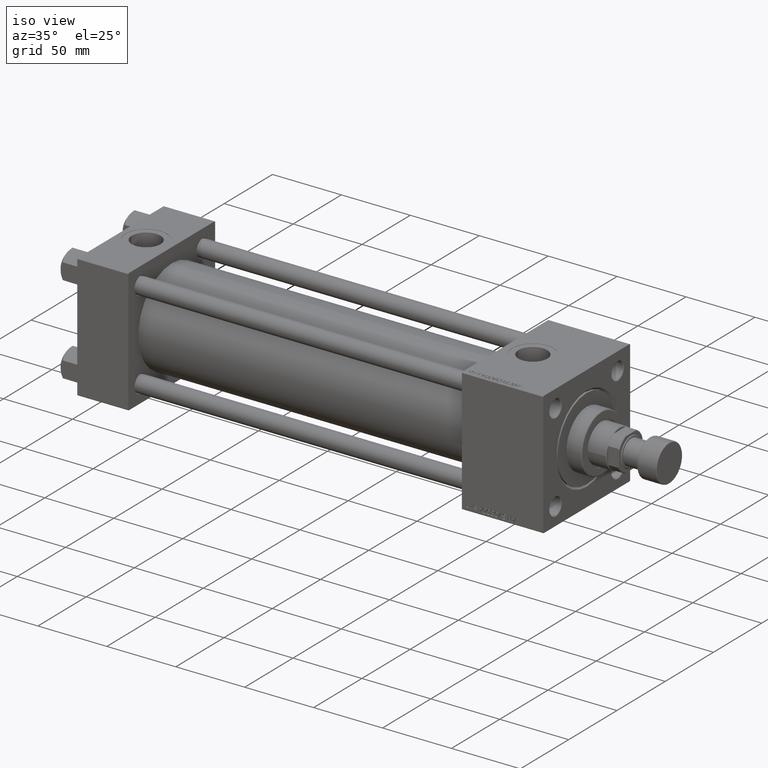
[diagram: clean part render]
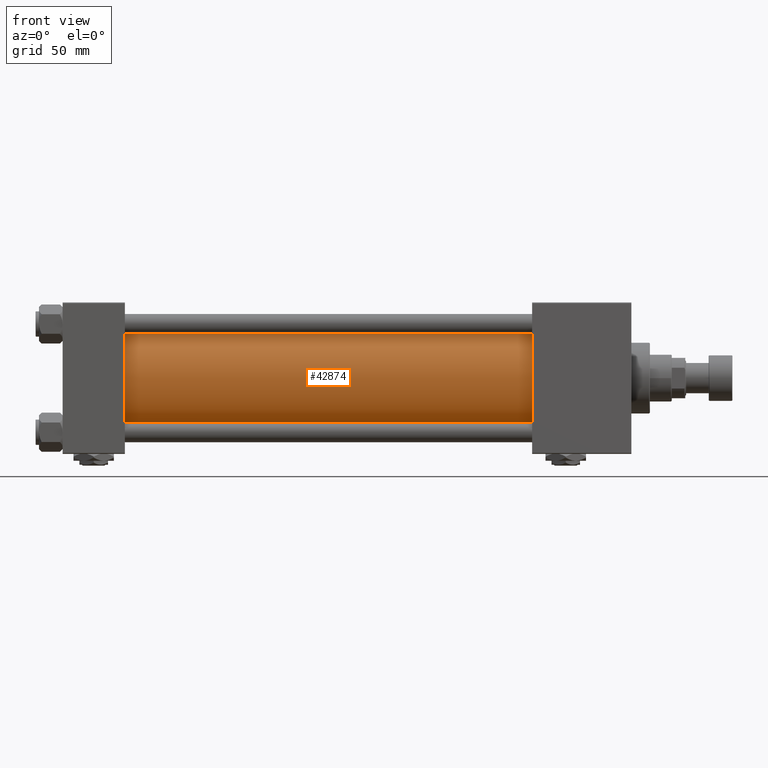
[diagram: tour spotlight — one face highlighted and labeled with its STEP entity id]
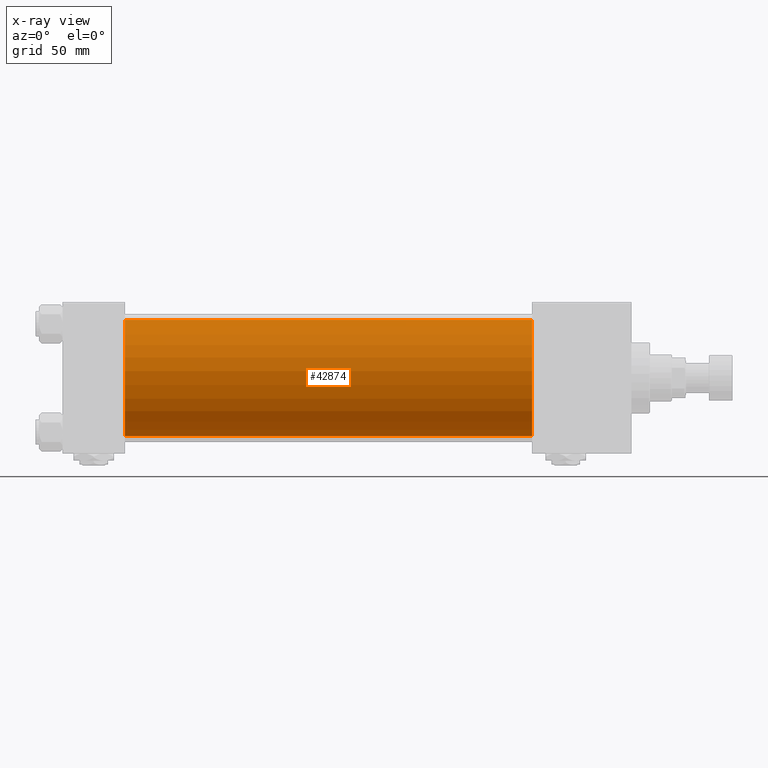
[diagram: x-ray of the same camera — body ghosted, this tour face saturated]
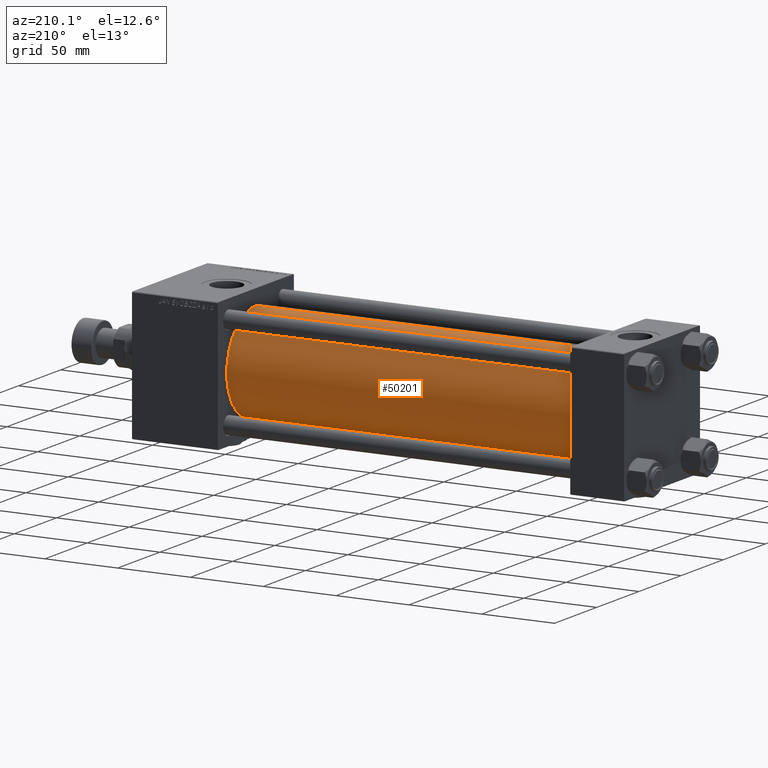
[diagram: tour spotlight — one face highlighted and labeled with its STEP entity id]
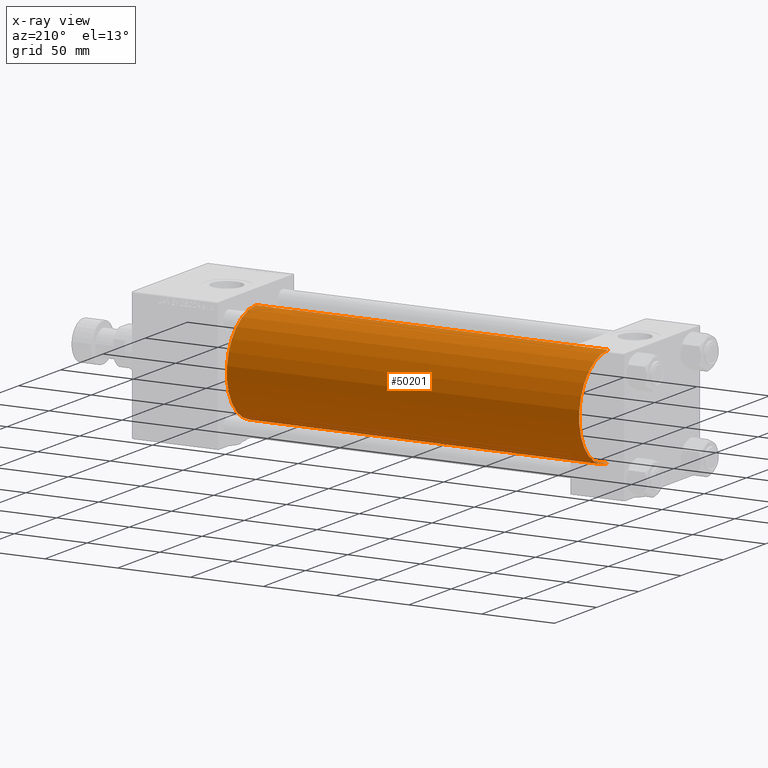
[diagram: x-ray of the same camera — body ghosted, this tour face saturated]
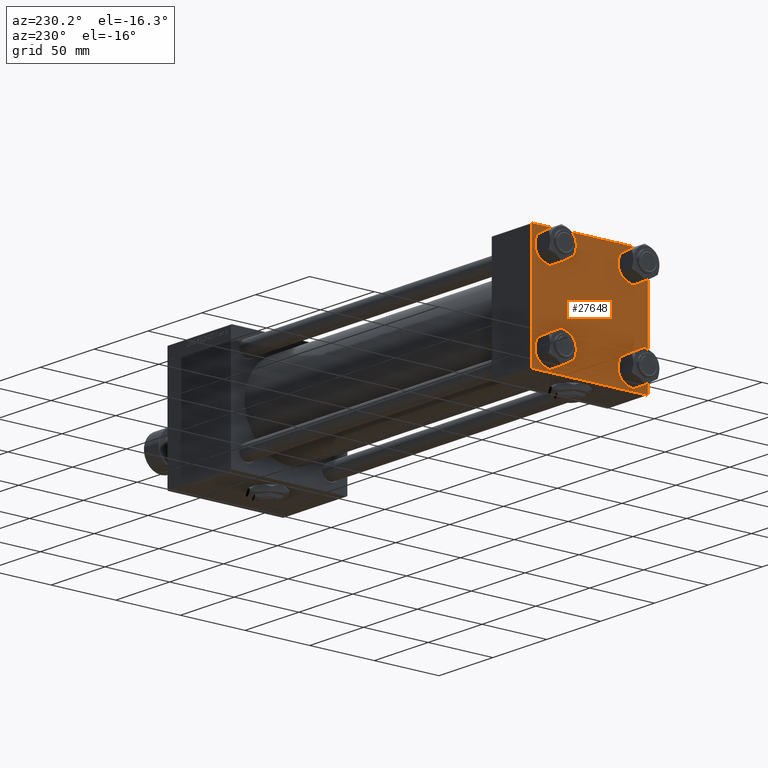
[diagram: tour spotlight — one face highlighted and labeled with its STEP entity id]
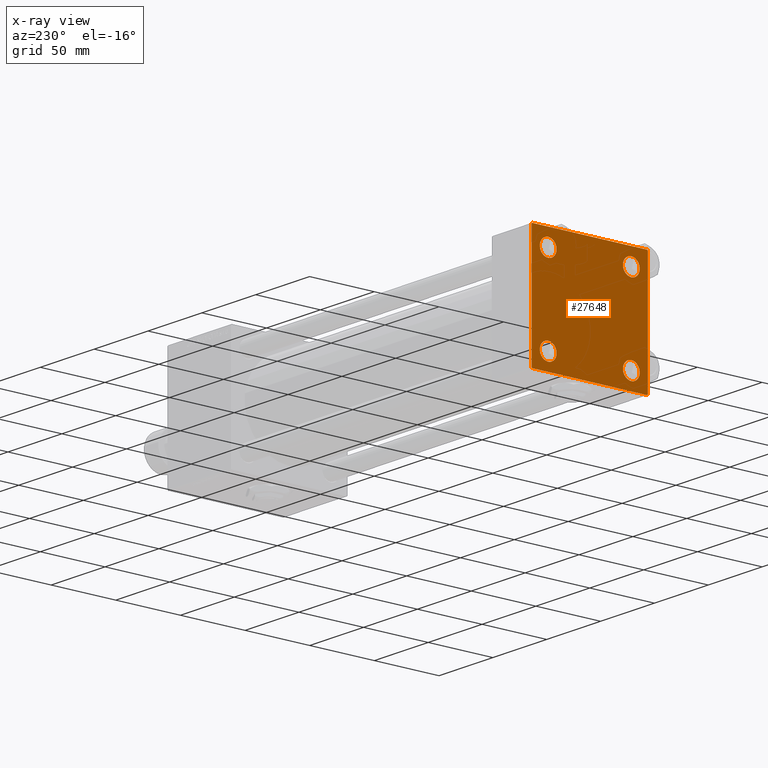
[diagram: x-ray of the same camera — body ghosted, this tour face saturated]
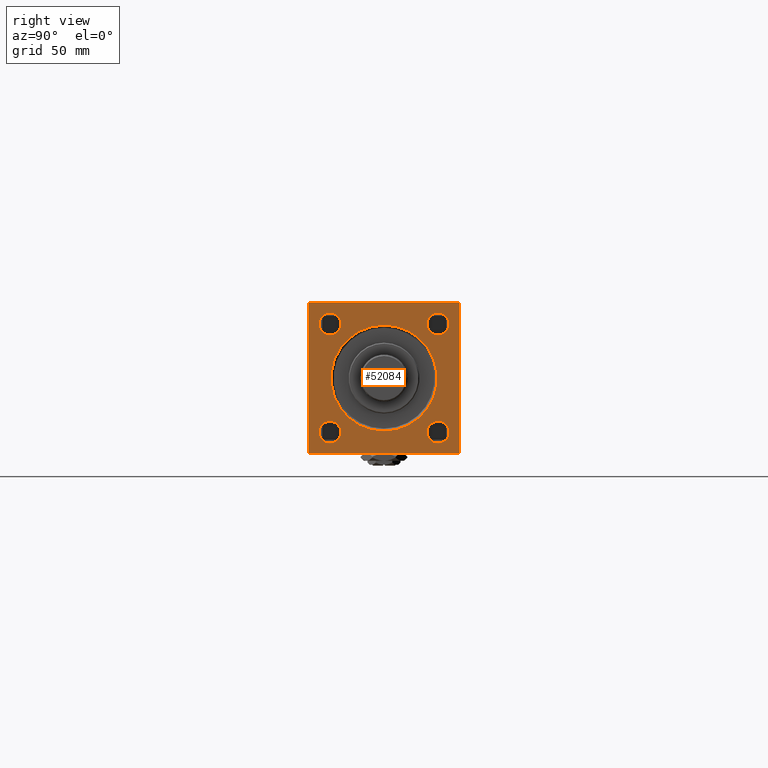
[diagram: tour spotlight — one face highlighted and labeled with its STEP entity id]
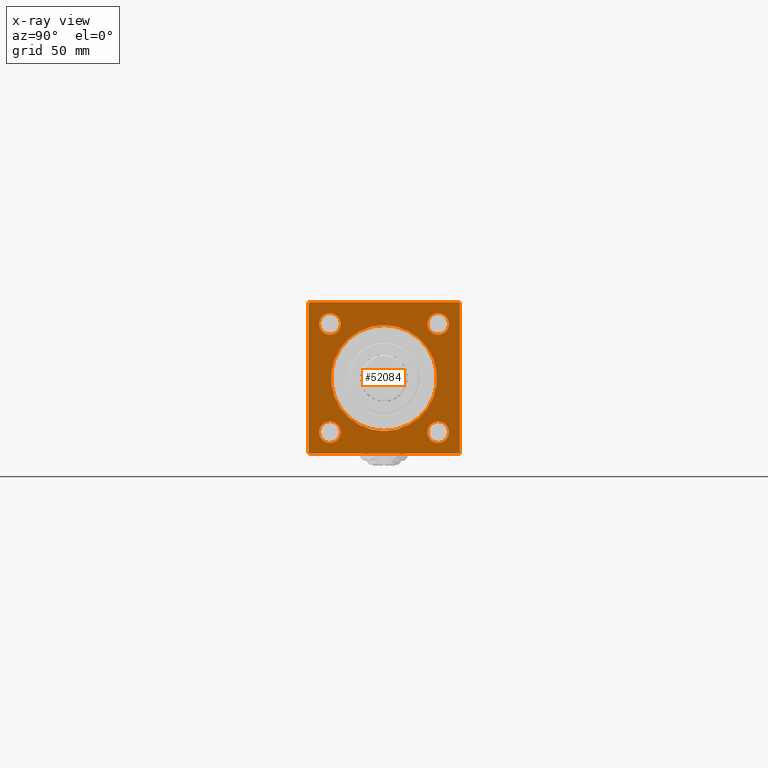
[diagram: x-ray of the same camera — body ghosted, this tour face saturated]
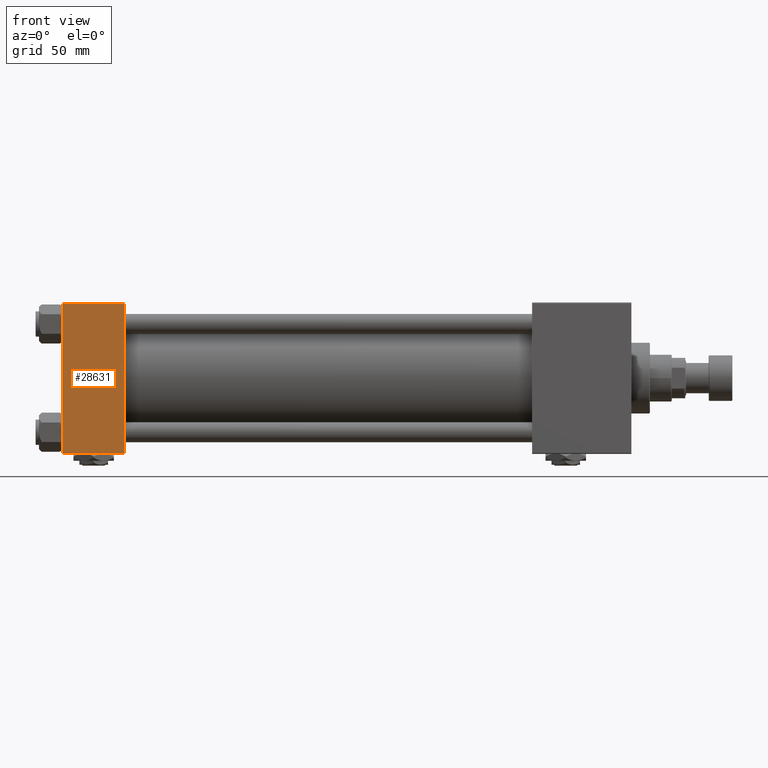
[diagram: tour spotlight — one face highlighted and labeled with its STEP entity id]
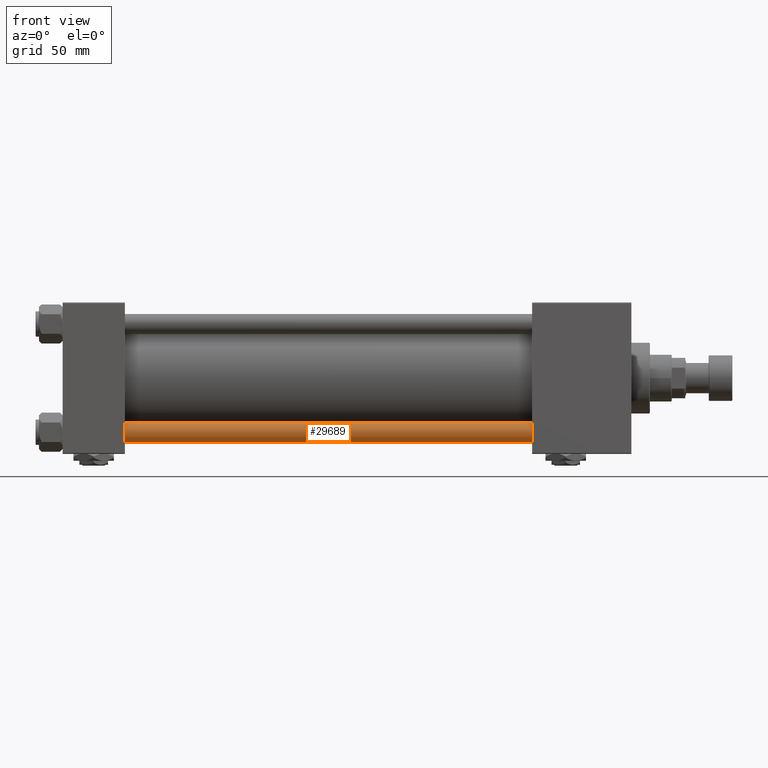
[diagram: tour spotlight — one face highlighted and labeled with its STEP entity id]
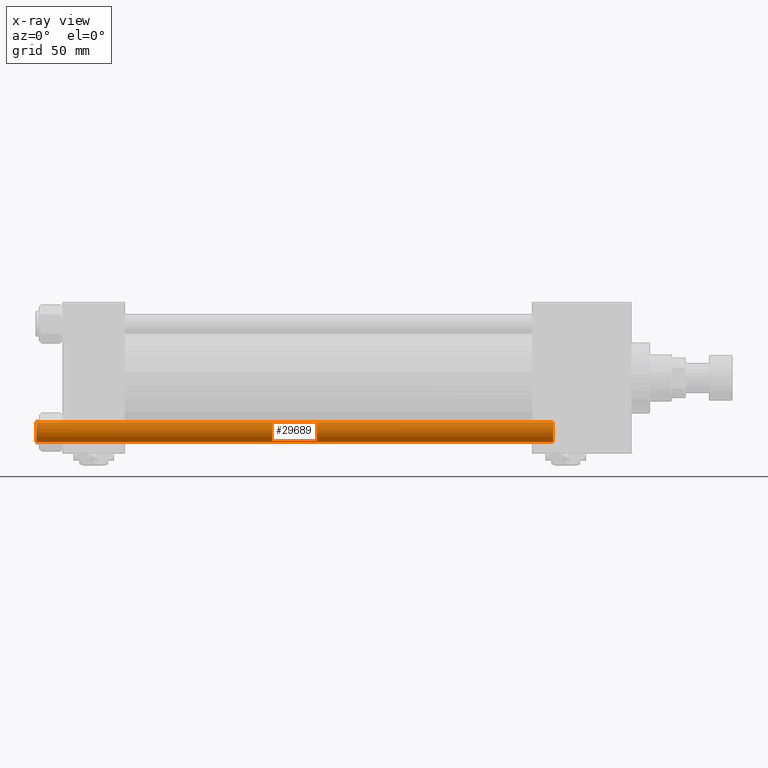
[diagram: x-ray of the same camera — body ghosted, this tour face saturated]
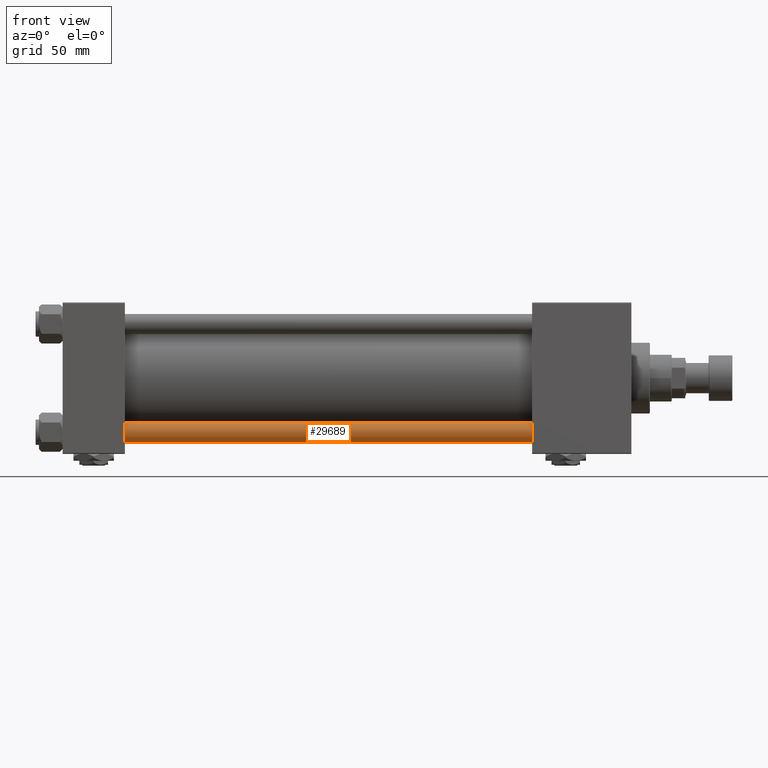
[diagram: tour spotlight — one face highlighted and labeled with its STEP entity id]
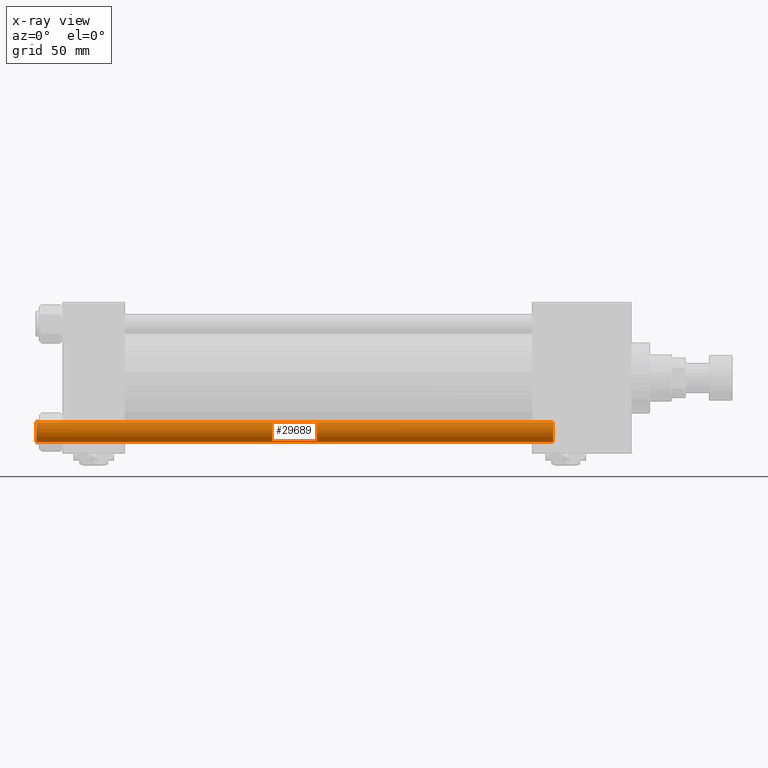
[diagram: x-ray of the same camera — body ghosted, this tour face saturated]
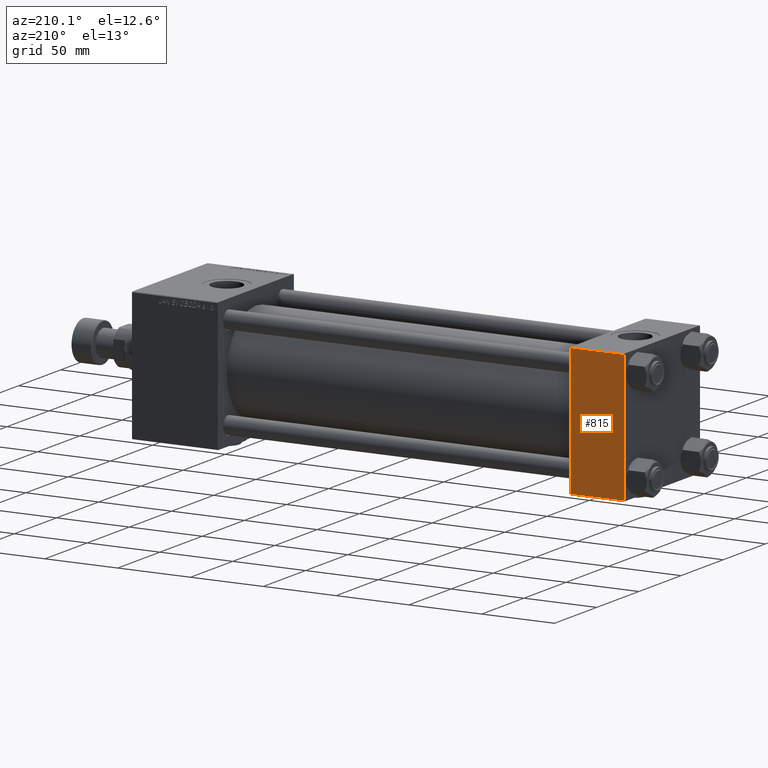
[diagram: tour spotlight — one face highlighted and labeled with its STEP entity id]
A machine part: a face-by-face anatomy tour. The part has 1264 B-rep faces; the first image is the clean iso view, then the 8 largest visible faces are spotlighted one at a time (largest first), each with its STEP entity span.

Face 1 — front view, entity #42874. An x-ray twin of the same camera follows (body ghosted, this face saturated) — the face is partly hidden behind the body. In plain terms, the highlighted cylindrical surface (partial cylindrical patch) has radius 34.5 mm, axis along (-1, -0, -0).
Definition (entity closure, byte-faithful):
#58 = VERTEX_POINT ( 'NONE', #32646 ) ;
#1352 = CARTESIAN_POINT ( 'NONE',  ( 278.9999999999999432, -2.602085213965210642E-15, 0.000000000000000000 ) ) ;
#3714 = VECTOR ( 'NONE', #35685, 1000.000000000000000 ) ;
#4329 = DIRECTION ( 'NONE',  ( 1.000000000000000000, 0.000000000000000000, 0.000000000000000000 ) ) ;
#6649 = CARTESIAN_POINT ( 'NONE',  ( 278.9999999999999432, 1.622946243093158675E-15, -34.50000000000000000 ) ) ;
#7718 = AXIS2_PLACEMENT_3D ( 'NONE', #10296, #30070, #9776 ) ;
#9776 = DIRECTION ( 'NONE',  ( 0.000000000000000000, 0.000000000000000000, 1.000000000000000000 ) ) ;
#10296 = CARTESIAN_POINT ( 'NONE',  ( 37.00000000000000711, -2.602085213965210642E-15, 0.000000000000000000 ) ) ;
#11086 = ORIENTED_EDGE ( 'NONE', *, *, #46362, .T. ) ;
#11197 = CARTESIAN_POINT ( 'NONE',  ( 278.9999999999999432, -2.602085213965210642E-15, 34.50000000000000000 ) ) ;
#14399 = CYLINDRICAL_SURFACE ( 'NONE', #28454, 34.50000000000000000 ) ;
#16445 = VECTOR ( 'NONE', #28718, 1000.000000000000000 ) ;
#17642 = CARTESIAN_POINT ( 'NONE',  ( 37.00000000000000711, 1.622946243093158675E-15, -34.50000000000000000 ) ) ;
#20474 = LINE ( 'NONE', #24481, #3714 ) ;
#21800 = EDGE_LOOP ( 'NONE', ( #38654, #25745, #11086, #48465 ) ) ;
#24481 = CARTESIAN_POINT ( 'NONE',  ( 278.9999999999999432, -2.602085213965210642E-15, 34.50000000000000000 ) ) ;
#25745 = ORIENTED_EDGE ( 'NONE', *, *, #33832, .F. ) ;
#26699 = CARTESIAN_POINT ( 'NONE',  ( 278.9999999999999432, -2.602085213965210642E-15, 0.000000000000000000 ) ) ;
#26958 = DIRECTION ( 'NONE',  ( 0.000000000000000000, 0.000000000000000000, 1.000000000000000000 ) ) ;
#28454 = AXIS2_PLACEMENT_3D ( 'NONE', #26699, #39497, #26958 ) ;
#28718 = DIRECTION ( 'NONE',  ( -1.000000000000000000, -0.000000000000000000, -0.000000000000000000 ) ) ;
#29922 = DIRECTION ( 'NONE',  ( 0.000000000000000000, 0.000000000000000000, -1.000000000000000000 ) ) ;
#30070 = DIRECTION ( 'NONE',  ( 1.000000000000000000, -0.000000000000000000, 0.000000000000000000 ) ) ;
#30972 = FACE_OUTER_BOUND ( 'NONE', #21800, .T. ) ;
#32646 = CARTESIAN_POINT ( 'NONE',  ( 37.00000000000000711, -2.602085213965210642E-15, 34.50000000000000000 ) ) ;
#32726 = LINE ( 'NONE', #48970, #16445 ) ;
#33832 = EDGE_CURVE ( 'NONE', #51826, #45151, #44311, .T. ) ;
#35296 = EDGE_CURVE ( 'NONE', #58, #52661, #48607, .T. ) ;
#35685 = DIRECTION ( 'NONE',  ( -1.000000000000000000, -0.000000000000000000, -0.000000000000000000 ) ) ;
#38654 = ORIENTED_EDGE ( 'NONE', *, *, #39929, .F. ) ;
#39497 = DIRECTION ( 'NONE',  ( -1.000000000000000000, -0.000000000000000000, -0.000000000000000000 ) ) ;
#39929 = EDGE_CURVE ( 'NONE', #45151, #52661, #32726, .T. ) ;
#42594 = AXIS2_PLACEMENT_3D ( 'NONE', #1352, #4329, #29922 ) ;
#42874 = ADVANCED_FACE ( 'NONE', ( #30972 ), #14399, .T. ) ;
#44311 = CIRCLE ( 'NONE', #42594, 34.50000000000000000 ) ;
#45151 = VERTEX_POINT ( 'NONE', #6649 ) ;
#46362 = EDGE_CURVE ( 'NONE', #51826, #58, #20474, .T. ) ;
#48465 = ORIENTED_EDGE ( 'NONE', *, *, #35296, .T. ) ;
#48607 = CIRCLE ( 'NONE', #7718, 34.50000000000000000 ) ;
#48970 = CARTESIAN_POINT ( 'NONE',  ( 278.9999999999999432, 1.622946243093158675E-15, -34.50000000000000000 ) ) ;
#51826 = VERTEX_POINT ( 'NONE', #11197 ) ;
#52661 = VERTEX_POINT ( 'NONE', #17642 ) ;

Face 2 — auxiliary view, entity #50201. An x-ray twin of the same camera follows (body ghosted, this face saturated) — the face is partly hidden behind the body. In plain terms, the highlighted cylindrical surface (partial cylindrical patch) has radius 34.5 mm, axis along (-1, -0, -0).
Definition (entity closure, byte-faithful):
#58 = VERTEX_POINT ( 'NONE', #32646 ) ;
#3649 = FACE_OUTER_BOUND ( 'NONE', #24634, .T. ) ;
#3714 = VECTOR ( 'NONE', #35685, 1000.000000000000000 ) ;
#5032 = CARTESIAN_POINT ( 'NONE',  ( 37.00000000000000711, -2.602085213965210642E-15, 0.000000000000000000 ) ) ;
#6649 = CARTESIAN_POINT ( 'NONE',  ( 278.9999999999999432, 1.622946243093158675E-15, -34.50000000000000000 ) ) ;
#7744 = ORIENTED_EDGE ( 'NONE', *, *, #16976, .T. ) ;
#10232 = ORIENTED_EDGE ( 'NONE', *, *, #39929, .T. ) ;
#11197 = CARTESIAN_POINT ( 'NONE',  ( 278.9999999999999432, -2.602085213965210642E-15, 34.50000000000000000 ) ) ;
#11274 = DIRECTION ( 'NONE',  ( 0.000000000000000000, 0.000000000000000000, -1.000000000000000000 ) ) ;
#11339 = AXIS2_PLACEMENT_3D ( 'NONE', #5032, #29082, #49319 ) ;
#13840 = CIRCLE ( 'NONE', #43694, 34.50000000000000000 ) ;
#16396 = EDGE_CURVE ( 'NONE', #45151, #51826, #13840, .T. ) ;
#16445 = VECTOR ( 'NONE', #28718, 1000.000000000000000 ) ;
#16976 = EDGE_CURVE ( 'NONE', #52661, #58, #48811, .T. ) ;
#17642 = CARTESIAN_POINT ( 'NONE',  ( 37.00000000000000711, 1.622946243093158675E-15, -34.50000000000000000 ) ) ;
#19229 = AXIS2_PLACEMENT_3D ( 'NONE', #52448, #24727, #20457 ) ;
#20457 = DIRECTION ( 'NONE',  ( 0.000000000000000000, 0.000000000000000000, 1.000000000000000000 ) ) ;
#20474 = LINE ( 'NONE', #24481, #3714 ) ;
#20982 = CYLINDRICAL_SURFACE ( 'NONE', #19229, 34.50000000000000000 ) ;
#24481 = CARTESIAN_POINT ( 'NONE',  ( 278.9999999999999432, -2.602085213965210642E-15, 34.50000000000000000 ) ) ;
#24634 = EDGE_LOOP ( 'NONE', ( #28173, #10232, #7744, #41732 ) ) ;
#24727 = DIRECTION ( 'NONE',  ( -1.000000000000000000, -0.000000000000000000, -0.000000000000000000 ) ) ;
#28173 = ORIENTED_EDGE ( 'NONE', *, *, #16396, .F. ) ;
#28718 = DIRECTION ( 'NONE',  ( -1.000000000000000000, -0.000000000000000000, -0.000000000000000000 ) ) ;
#29082 = DIRECTION ( 'NONE',  ( 1.000000000000000000, -0.000000000000000000, 0.000000000000000000 ) ) ;
#32097 = CARTESIAN_POINT ( 'NONE',  ( 278.9999999999999432, -2.602085213965210642E-15, 0.000000000000000000 ) ) ;
#32646 = CARTESIAN_POINT ( 'NONE',  ( 37.00000000000000711, -2.602085213965210642E-15, 34.50000000000000000 ) ) ;
#32726 = LINE ( 'NONE', #48970, #16445 ) ;
#35312 = DIRECTION ( 'NONE',  ( 1.000000000000000000, 0.000000000000000000, 0.000000000000000000 ) ) ;
#35685 = DIRECTION ( 'NONE',  ( -1.000000000000000000, -0.000000000000000000, -0.000000000000000000 ) ) ;
#39929 = EDGE_CURVE ( 'NONE', #45151, #52661, #32726, .T. ) ;
#41732 = ORIENTED_EDGE ( 'NONE', *, *, #46362, .F. ) ;
#43694 = AXIS2_PLACEMENT_3D ( 'NONE', #32097, #35312, #11274 ) ;
#45151 = VERTEX_POINT ( 'NONE', #6649 ) ;
#46362 = EDGE_CURVE ( 'NONE', #51826, #58, #20474, .T. ) ;
#48811 = CIRCLE ( 'NONE', #11339, 34.50000000000000000 ) ;
#48970 = CARTESIAN_POINT ( 'NONE',  ( 278.9999999999999432, 1.622946243093158675E-15, -34.50000000000000000 ) ) ;
#49319 = DIRECTION ( 'NONE',  ( 0.000000000000000000, 0.000000000000000000, 1.000000000000000000 ) ) ;
#50201 = ADVANCED_FACE ( 'NONE', ( #3649 ), #20982, .T. ) ;
#51826 = VERTEX_POINT ( 'NONE', #11197 ) ;
#52448 = CARTESIAN_POINT ( 'NONE',  ( 278.9999999999999432, -2.602085213965210642E-15, 0.000000000000000000 ) ) ;
#52661 = VERTEX_POINT ( 'NONE', #17642 ) ;

Face 3 — auxiliary view, entity #27648. An x-ray twin of the same camera follows (body ghosted, this face saturated) — the face is partly hidden behind the body. In plain terms, the highlighted planar face has unit normal (-1, 0, 0).
Definition (entity closure, byte-faithful):
#413 = CARTESIAN_POINT ( 'NONE',  ( 0.000000000000000000, -32.14999999999997726, 32.15000000000001279 ) ) ;
#1798 = DIRECTION ( 'NONE',  ( 0.000000000000000000, 0.000000000000000000, 1.000000000000000000 ) ) ;
#1878 = DIRECTION ( 'NONE',  ( 1.000000000000000000, -0.000000000000000000, 0.000000000000000000 ) ) ;
#2035 = DIRECTION ( 'NONE',  ( 0.000000000000000000, -1.000000000000000000, -1.541976423090495387E-16 ) ) ;
#2388 = CARTESIAN_POINT ( 'NONE',  ( 0.000000000000000000, -32.14999999999997726, 38.65000000000003411 ) ) ;
#2830 = EDGE_CURVE ( 'NONE', #51445, #47300, #32965, .T. ) ;
#3732 = CARTESIAN_POINT ( 'NONE',  ( 0.000000000000000000, 44.99999999999998579, -44.99999999999998579 ) ) ;
#4066 = ORIENTED_EDGE ( 'NONE', *, *, #18206, .T. ) ;
#4173 = ORIENTED_EDGE ( 'NONE', *, *, #15543, .T. ) ;
#4613 = CARTESIAN_POINT ( 'NONE',  ( 0.000000000000000000, 44.99999999999998579, -44.49999999999995737 ) ) ;
#4817 = CARTESIAN_POINT ( 'NONE',  ( 0.000000000000000000, 32.14999999999999147, -32.15000000000000568 ) ) ;
#5038 = EDGE_CURVE ( 'NONE', #40712, #45603, #28124, .T. ) ;
#5257 = EDGE_LOOP ( 'NONE', ( #4173, #43903, #43308, #49409, #27663, #51834, #24250, #44446 ) ) ;
#5527 = AXIS2_PLACEMENT_3D ( 'NONE', #4817, #49096, #37631 ) ;
#6275 = CIRCLE ( 'NONE', #24202, 6.500000000000019540 ) ;
#6492 = ORIENTED_EDGE ( 'NONE', *, *, #42709, .T. ) ;
#7046 = ORIENTED_EDGE ( 'NONE', *, *, #49429, .T. ) ;
#7927 = CARTESIAN_POINT ( 'NONE',  ( 0.000000000000000000, -32.14999999999997726, 25.64999999999999147 ) ) ;
#8659 = DIRECTION ( 'NONE',  ( 0.000000000000000000, 0.7071067811865474617, -0.7071067811865474617 ) ) ;
#9945 = DIRECTION ( 'NONE',  ( 0.000000000000000000, 0.000000000000000000, -1.000000000000000000 ) ) ;
#10818 = CARTESIAN_POINT ( 'NONE',  ( 0.000000000000000000, -32.14999999999997726, 32.15000000000001279 ) ) ;
#10828 = VECTOR ( 'NONE', #51609, 1000.000000000000114 ) ;
#10895 = CARTESIAN_POINT ( 'NONE',  ( 0.000000000000000000, 44.49999999999998579, 45.00000000000001421 ) ) ;
#11577 = DIRECTION ( 'NONE',  ( -0.000000000000000000, 0.000000000000000000, 1.000000000000000000 ) ) ;
#11915 = VECTOR ( 'NONE', #52790, 1000.000000000000114 ) ;
#12068 = VERTEX_POINT ( 'NONE', #10895 ) ;
#12651 = LINE ( 'NONE', #37219, #46088 ) ;
#13677 = CARTESIAN_POINT ( 'NONE',  ( 0.000000000000000000, 32.14999999999999147, 38.64999999999999147 ) ) ;
#13686 = CARTESIAN_POINT ( 'NONE',  ( 0.000000000000000000, 44.99999999999998579, 45.00000000000001421 ) ) ;
#13877 = DIRECTION ( 'NONE',  ( 0.000000000000000000, 0.000000000000000000, 1.000000000000000000 ) ) ;
#14270 = DIRECTION ( 'NONE',  ( -0.000000000000000000, 0.7071067811865425767, 0.7071067811865524577 ) ) ;
#14622 = EDGE_LOOP ( 'NONE', ( #39060, #24943 ) ) ;
#14697 = VERTEX_POINT ( 'NONE', #13677 ) ;
#14789 = CARTESIAN_POINT ( 'NONE',  ( 0.000000000000000000, -32.14999999999997726, -32.15000000000001279 ) ) ;
#14810 = FACE_BOUND ( 'NONE', #16227, .T. ) ;
#15543 = EDGE_CURVE ( 'NONE', #19073, #35900, #50229, .T. ) ;
#15740 = LINE ( 'NONE', #32028, #11915 ) ;
#15788 = DIRECTION ( 'NONE',  ( 1.000000000000000000, -0.000000000000000000, 0.000000000000000000 ) ) ;
#16123 = DIRECTION ( 'NONE',  ( 0.000000000000000000, 0.000000000000000000, 1.000000000000000000 ) ) ;
#16227 = EDGE_LOOP ( 'NONE', ( #4066, #16648 ) ) ;
#16521 = CARTESIAN_POINT ( 'NONE',  ( 0.000000000000000000, 32.14999999999999147, -25.65000000000002700 ) ) ;
#16648 = ORIENTED_EDGE ( 'NONE', *, *, #50273, .T. ) ;
#16708 = DIRECTION ( 'NONE',  ( 0.000000000000000000, 0.000000000000000000, 1.000000000000000000 ) ) ;
#17255 = VECTOR ( 'NONE', #9945, 1000.000000000000000 ) ;
#17937 = CARTESIAN_POINT ( 'NONE',  ( 0.000000000000000000, -45.00000000000000000, -44.49999999999995737 ) ) ;
#18206 = EDGE_CURVE ( 'NONE', #45108, #46316, #6275, .T. ) ;
#18305 = LINE ( 'NONE', #45760, #40002 ) ;
#19073 = VERTEX_POINT ( 'NONE', #51118 ) ;
#19095 = FACE_BOUND ( 'NONE', #14622, .T. ) ;
#19130 = DIRECTION ( 'NONE',  ( 1.000000000000000000, -0.000000000000000000, 0.000000000000000000 ) ) ;
#19399 = EDGE_CURVE ( 'NONE', #14697, #45553, #24242, .T. ) ;
#21185 = CARTESIAN_POINT ( 'NONE',  ( 0.000000000000000000, -45.00000000000000711, 44.49999999999997158 ) ) ;
#21738 = CIRCLE ( 'NONE', #5527, 6.499999999999977796 ) ;
#21836 = CARTESIAN_POINT ( 'NONE',  ( 0.000000000000000000, -32.14999999999997726, -32.15000000000001279 ) ) ;
#22829 = CARTESIAN_POINT ( 'NONE',  ( 0.000000000000000000, 0.000000000000000000, 0.000000000000000000 ) ) ;
#24152 = DIRECTION ( 'NONE',  ( 1.000000000000000000, -0.000000000000000000, 0.000000000000000000 ) ) ;
#24153 = EDGE_CURVE ( 'NONE', #35900, #37018, #47594, .T. ) ;
#24189 = AXIS2_PLACEMENT_3D ( 'NONE', #33653, #1878, #13877 ) ;
#24202 = AXIS2_PLACEMENT_3D ( 'NONE', #10818, #19130, #39661 ) ;
#24242 = CIRCLE ( 'NONE', #52304, 6.499999999999977796 ) ;
#24250 = ORIENTED_EDGE ( 'NONE', *, *, #33071, .F. ) ;
#24478 = CARTESIAN_POINT ( 'NONE',  ( 0.000000000000000000, -44.49999999999995737, -45.00000000000000000 ) ) ;
#24616 = VERTEX_POINT ( 'NONE', #24478 ) ;
#24687 = ORIENTED_EDGE ( 'NONE', *, *, #19399, .T. ) ;
#24943 = ORIENTED_EDGE ( 'NONE', *, *, #49799, .T. ) ;
#25551 = VECTOR ( 'NONE', #2035, 1000.000000000000000 ) ;
#27341 = DIRECTION ( 'NONE',  ( 1.000000000000000000, -0.000000000000000000, 0.000000000000000000 ) ) ;
#27498 = LINE ( 'NONE', #3732, #35794 ) ;
#27627 = PLANE ( 'NONE',  #47578 ) ;
#27648 = ADVANCED_FACE ( 'NONE', ( #14810, #19095, #35615, #47598, #31104 ), #27627, .T. ) ;
#27663 = ORIENTED_EDGE ( 'NONE', *, *, #2830, .F. ) ;
#28124 = CIRCLE ( 'NONE', #52768, 6.499999999999977796 ) ;
#30063 = LINE ( 'NONE', #46319, #25551 ) ;
#30125 = EDGE_CURVE ( 'NONE', #44100, #40270, #51919, .T. ) ;
#31104 = FACE_OUTER_BOUND ( 'NONE', #5257, .T. ) ;
#31520 = EDGE_CURVE ( 'NONE', #37018, #24616, #27498, .T. ) ;
#32028 = CARTESIAN_POINT ( 'NONE',  ( 0.000000000000000000, -44.74999999999998579, -44.74999999999998579 ) ) ;
#32176 = DIRECTION ( 'NONE',  ( 0.000000000000000000, 7.709882115452476934E-17, -1.000000000000000000 ) ) ;
#32860 = CARTESIAN_POINT ( 'NONE',  ( 0.000000000000000000, 32.14999999999999147, -32.15000000000000568 ) ) ;
#32917 = CARTESIAN_POINT ( 'NONE',  ( 0.000000000000000000, -32.14999999999997726, -38.64999999999999147 ) ) ;
#32965 = LINE ( 'NONE', #40179, #45054 ) ;
#33071 = EDGE_CURVE ( 'NONE', #12068, #41664, #30063, .T. ) ;
#33133 = CARTESIAN_POINT ( 'NONE',  ( 0.000000000000000000, -32.14999999999997726, -25.65000000000003411 ) ) ;
#33653 = CARTESIAN_POINT ( 'NONE',  ( 0.000000000000000000, 32.14999999999999147, 32.15000000000000568 ) ) ;
#35615 = FACE_BOUND ( 'NONE', #52014, .T. ) ;
#35748 = DIRECTION ( 'NONE',  ( 0.000000000000000000, -1.000000000000000000, -1.541976423090495633E-16 ) ) ;
#35794 = VECTOR ( 'NONE', #35748, 1000.000000000000000 ) ;
#35900 = VERTEX_POINT ( 'NONE', #4613 ) ;
#36545 = EDGE_CURVE ( 'NONE', #12068, #19073, #12651, .T. ) ;
#37018 = VERTEX_POINT ( 'NONE', #42198 ) ;
#37219 = CARTESIAN_POINT ( 'NONE',  ( 0.000000000000000000, 44.74999999999999289, 44.74999999999999289 ) ) ;
#37631 = DIRECTION ( 'NONE',  ( 0.000000000000000000, 0.000000000000000000, 1.000000000000000000 ) ) ;
#39060 = ORIENTED_EDGE ( 'NONE', *, *, #30125, .T. ) ;
#39661 = DIRECTION ( 'NONE',  ( 0.000000000000000000, 0.000000000000000000, 1.000000000000000000 ) ) ;
#39875 = CARTESIAN_POINT ( 'NONE',  ( 0.000000000000000000, 44.74999999999998579, -44.74999999999998579 ) ) ;
#40002 = VECTOR ( 'NONE', #14270, 1000.000000000000114 ) ;
#40179 = CARTESIAN_POINT ( 'NONE',  ( 0.000000000000000000, -45.00000000000000711, 45.00000000000000000 ) ) ;
#40270 = VERTEX_POINT ( 'NONE', #32917 ) ;
#40507 = AXIS2_PLACEMENT_3D ( 'NONE', #21836, #49818, #1798 ) ;
#40712 = VERTEX_POINT ( 'NONE', #16521 ) ;
#40935 = CARTESIAN_POINT ( 'NONE',  ( 0.000000000000000000, 32.14999999999999147, 32.15000000000000568 ) ) ;
#41234 = CIRCLE ( 'NONE', #24189, 6.499999999999977796 ) ;
#41664 = VERTEX_POINT ( 'NONE', #51415 ) ;
#42198 = CARTESIAN_POINT ( 'NONE',  ( 0.000000000000000000, 44.49999999999998579, -44.99999999999998579 ) ) ;
#42709 = EDGE_CURVE ( 'NONE', #45553, #14697, #41234, .T. ) ;
#42844 = EDGE_LOOP ( 'NONE', ( #24687, #6492 ) ) ;
#43308 = ORIENTED_EDGE ( 'NONE', *, *, #31520, .T. ) ;
#43629 = DIRECTION ( 'NONE',  ( -1.000000000000000000, 0.000000000000000000, -0.000000000000000000 ) ) ;
#43903 = ORIENTED_EDGE ( 'NONE', *, *, #24153, .T. ) ;
#43949 = CARTESIAN_POINT ( 'NONE',  ( 0.000000000000000000, 32.14999999999999147, -38.64999999999998437 ) ) ;
#44100 = VERTEX_POINT ( 'NONE', #33133 ) ;
#44366 = ORIENTED_EDGE ( 'NONE', *, *, #5038, .T. ) ;
#44446 = ORIENTED_EDGE ( 'NONE', *, *, #36545, .T. ) ;
#45054 = VECTOR ( 'NONE', #32176, 1000.000000000000000 ) ;
#45108 = VERTEX_POINT ( 'NONE', #2388 ) ;
#45109 = DIRECTION ( 'NONE',  ( 0.000000000000000000, 0.000000000000000000, 1.000000000000000000 ) ) ;
#45553 = VERTEX_POINT ( 'NONE', #48194 ) ;
#45584 = CIRCLE ( 'NONE', #40507, 6.499999999999977796 ) ;
#45603 = VERTEX_POINT ( 'NONE', #43949 ) ;
#45760 = CARTESIAN_POINT ( 'NONE',  ( -0.000000000000000000, -44.75000000000029843, 44.74999999999967315 ) ) ;
#46088 = VECTOR ( 'NONE', #8659, 1000.000000000000114 ) ;
#46316 = VERTEX_POINT ( 'NONE', #7927 ) ;
#46319 = CARTESIAN_POINT ( 'NONE',  ( 0.000000000000000000, 44.99999999999998579, 45.00000000000001421 ) ) ;
#47062 = DIRECTION ( 'NONE',  ( 0.000000000000000000, 0.000000000000000000, 1.000000000000000000 ) ) ;
#47300 = VERTEX_POINT ( 'NONE', #17937 ) ;
#47578 = AXIS2_PLACEMENT_3D ( 'NONE', #22829, #43629, #11577 ) ;
#47594 = LINE ( 'NONE', #39875, #10828 ) ;
#47598 = FACE_BOUND ( 'NONE', #42844, .T. ) ;
#47689 = AXIS2_PLACEMENT_3D ( 'NONE', #14789, #27341, #47062 ) ;
#48194 = CARTESIAN_POINT ( 'NONE',  ( 0.000000000000000000, 32.14999999999999147, 25.65000000000002700 ) ) ;
#48438 = DIRECTION ( 'NONE',  ( 1.000000000000000000, -0.000000000000000000, 0.000000000000000000 ) ) ;
#49014 = CIRCLE ( 'NONE', #49844, 6.500000000000019540 ) ;
#49096 = DIRECTION ( 'NONE',  ( 1.000000000000000000, -0.000000000000000000, 0.000000000000000000 ) ) ;
#49409 = ORIENTED_EDGE ( 'NONE', *, *, #51902, .T. ) ;
#49429 = EDGE_CURVE ( 'NONE', #45603, #40712, #21738, .T. ) ;
#49799 = EDGE_CURVE ( 'NONE', #40270, #44100, #45584, .T. ) ;
#49818 = DIRECTION ( 'NONE',  ( 1.000000000000000000, -0.000000000000000000, 0.000000000000000000 ) ) ;
#49844 = AXIS2_PLACEMENT_3D ( 'NONE', #413, #48438, #16708 ) ;
#50229 = LINE ( 'NONE', #13686, #17255 ) ;
#50273 = EDGE_CURVE ( 'NONE', #46316, #45108, #49014, .T. ) ;
#51118 = CARTESIAN_POINT ( 'NONE',  ( 0.000000000000000000, 44.99999999999998579, 44.50000000000001421 ) ) ;
#51120 = EDGE_CURVE ( 'NONE', #51445, #41664, #18305, .T. ) ;
#51415 = CARTESIAN_POINT ( 'NONE',  ( 0.000000000000000000, -44.49999999999995737, 45.00000000000000000 ) ) ;
#51445 = VERTEX_POINT ( 'NONE', #21185 ) ;
#51609 = DIRECTION ( 'NONE',  ( -0.000000000000000000, -0.7071067811865474617, -0.7071067811865474617 ) ) ;
#51834 = ORIENTED_EDGE ( 'NONE', *, *, #51120, .T. ) ;
#51902 = EDGE_CURVE ( 'NONE', #24616, #47300, #15740, .T. ) ;
#51919 = CIRCLE ( 'NONE', #47689, 6.499999999999977796 ) ;
#52014 = EDGE_LOOP ( 'NONE', ( #44366, #7046 ) ) ;
#52304 = AXIS2_PLACEMENT_3D ( 'NONE', #40935, #24152, #16123 ) ;
#52768 = AXIS2_PLACEMENT_3D ( 'NONE', #32860, #15788, #45109 ) ;
#52790 = DIRECTION ( 'NONE',  ( 0.000000000000000000, -0.7071067811865474617, 0.7071067811865474617 ) ) ;

Face 4 — right view, entity #52084. An x-ray twin of the same camera follows (body ghosted, this face saturated) — the face is partly hidden behind the body. In plain terms, the highlighted planar face has unit normal (-1, 0, 0).
Definition (entity closure, byte-faithful):
#145 = DIRECTION ( 'NONE',  ( 0.000000000000000000, 0.000000000000000000, 1.000000000000000000 ) ) ;
#233 = EDGE_CURVE ( 'NONE', #9581, #47003, #45766, .T. ) ;
#266 = LINE ( 'NONE', #12010, #29716 ) ;
#824 = EDGE_CURVE ( 'NONE', #25717, #34179, #43326, .T. ) ;
#1081 = CIRCLE ( 'NONE', #12173, 31.49999999999997158 ) ;
#1608 = CIRCLE ( 'NONE', #11852, 6.499999999999950262 ) ;
#1691 = ORIENTED_EDGE ( 'NONE', *, *, #6436, .T. ) ;
#1816 = FACE_BOUND ( 'NONE', #35849, .T. ) ;
#1977 = EDGE_CURVE ( 'NONE', #43242, #48823, #33103, .T. ) ;
#2084 = FACE_BOUND ( 'NONE', #28936, .T. ) ;
#2372 = CARTESIAN_POINT ( 'NONE',  ( 337.9999999999999432, -32.15000000000001279, -38.64999999999996305 ) ) ;
#3042 = DIRECTION ( 'NONE',  ( 0.000000000000000000, 0.000000000000000000, -1.000000000000000000 ) ) ;
#3071 = EDGE_CURVE ( 'NONE', #16089, #19591, #266, .T. ) ;
#3198 = AXIS2_PLACEMENT_3D ( 'NONE', #10162, #6686, #35516 ) ;
#4020 = DIRECTION ( 'NONE',  ( -0.000000000000000000, 0.7071067811865474617, 0.7071067811865474617 ) ) ;
#4163 = DIRECTION ( 'NONE',  ( -1.000000000000000000, -0.000000000000000000, -0.000000000000000000 ) ) ;
#4220 = ORIENTED_EDGE ( 'NONE', *, *, #45102, .T. ) ;
#4630 = AXIS2_PLACEMENT_3D ( 'NONE', #12324, #16349, #8069 ) ;
#5075 = AXIS2_PLACEMENT_3D ( 'NONE', #45600, #16561, #41593 ) ;
#6081 = FACE_BOUND ( 'NONE', #26675, .T. ) ;
#6436 = EDGE_CURVE ( 'NONE', #47003, #9581, #45997, .T. ) ;
#6476 = ORIENTED_EDGE ( 'NONE', *, *, #43046, .T. ) ;
#6686 = DIRECTION ( 'NONE',  ( -1.000000000000000000, -0.000000000000000000, -0.000000000000000000 ) ) ;
#6692 = DIRECTION ( 'NONE',  ( 0.000000000000000000, 0.000000000000000000, 1.000000000000000000 ) ) ;
#7194 = DIRECTION ( 'NONE',  ( -1.000000000000000000, -0.000000000000000000, -0.000000000000000000 ) ) ;
#7326 = LINE ( 'NONE', #23615, #12153 ) ;
#7527 = CARTESIAN_POINT ( 'NONE',  ( 337.9999999999999432, 0.000000000000000000, 0.000000000000000000 ) ) ;
#8069 = DIRECTION ( 'NONE',  ( 0.000000000000000000, 0.000000000000000000, 1.000000000000000000 ) ) ;
#8727 = DIRECTION ( 'NONE',  ( 0.000000000000000000, 0.000000000000000000, 1.000000000000000000 ) ) ;
#9241 = ORIENTED_EDGE ( 'NONE', *, *, #3071, .T. ) ;
#9563 = EDGE_CURVE ( 'NONE', #21148, #34179, #24844, .T. ) ;
#9581 = VERTEX_POINT ( 'NONE', #36047 ) ;
#10162 = CARTESIAN_POINT ( 'NONE',  ( 337.9999999999999432, 32.14999999999999147, 32.15000000000000568 ) ) ;
#10436 = CARTESIAN_POINT ( 'NONE',  ( 337.9999999999999432, 32.14999999999999147, -32.15000000000000568 ) ) ;
#10477 = AXIS2_PLACEMENT_3D ( 'NONE', #26953, #7194, #10658 ) ;
#10658 = DIRECTION ( 'NONE',  ( 0.000000000000000000, 0.000000000000000000, 1.000000000000000000 ) ) ;
#10709 = CARTESIAN_POINT ( 'NONE',  ( 337.9999999999999432, 45.00000000000001421, 44.49999999999994316 ) ) ;
#11038 = VERTEX_POINT ( 'NONE', #13847 ) ;
#11796 = VERTEX_POINT ( 'NONE', #36318 ) ;
#11852 = AXIS2_PLACEMENT_3D ( 'NONE', #15951, #49533, #8727 ) ;
#12010 = CARTESIAN_POINT ( 'NONE',  ( 337.9999999999999432, -44.49999999999998579, -45.00000000000000000 ) ) ;
#12062 = VERTEX_POINT ( 'NONE', #2372 ) ;
#12127 = ORIENTED_EDGE ( 'NONE', *, *, #29518, .T. ) ;
#12153 = VECTOR ( 'NONE', #15861, 1000.000000000000000 ) ;
#12154 = CARTESIAN_POINT ( 'NONE',  ( 337.9999999999999432, -32.14999999999999147, 38.64999999999994174 ) ) ;
#12173 = AXIS2_PLACEMENT_3D ( 'NONE', #7527, #52073, #24358 ) ;
#12324 = CARTESIAN_POINT ( 'NONE',  ( 337.9999999999999432, -32.15000000000001279, -32.15000000000000568 ) ) ;
#12802 = ORIENTED_EDGE ( 'NONE', *, *, #43955, .T. ) ;
#13616 = AXIS2_PLACEMENT_3D ( 'NONE', #27431, #23426, #19949 ) ;
#13812 = FACE_BOUND ( 'NONE', #32919, .T. ) ;
#13847 = CARTESIAN_POINT ( 'NONE',  ( 337.9999999999999432, -32.15000000000001279, -25.65000000000005542 ) ) ;
#13869 = CIRCLE ( 'NONE', #20714, 31.49999999999997158 ) ;
#13953 = CARTESIAN_POINT ( 'NONE',  ( 337.9999999999999432, -44.50000000000002842, 44.99999999999998579 ) ) ;
#14221 = ORIENTED_EDGE ( 'NONE', *, *, #24886, .T. ) ;
#14340 = DIRECTION ( 'NONE',  ( -1.000000000000000000, 0.000000000000000000, -0.000000000000000000 ) ) ;
#14626 = CARTESIAN_POINT ( 'NONE',  ( 337.9999999999999432, 44.50000000000001421, -45.00000000000000000 ) ) ;
#14749 = CIRCLE ( 'NONE', #10477, 6.499999999999950262 ) ;
#14909 = ORIENTED_EDGE ( 'NONE', *, *, #44203, .T. ) ;
#15367 = AXIS2_PLACEMENT_3D ( 'NONE', #34638, #14340, #46891 ) ;
#15861 = DIRECTION ( 'NONE',  ( 0.000000000000000000, 7.709882115452478166E-17, -1.000000000000000000 ) ) ;
#15936 = LINE ( 'NONE', #41012, #21666 ) ;
#15951 = CARTESIAN_POINT ( 'NONE',  ( 337.9999999999999432, -32.14999999999999147, 32.14999999999999147 ) ) ;
#16089 = VERTEX_POINT ( 'NONE', #27447 ) ;
#16349 = DIRECTION ( 'NONE',  ( -1.000000000000000000, -0.000000000000000000, -0.000000000000000000 ) ) ;
#16557 = CIRCLE ( 'NONE', #4630, 6.499999999999950262 ) ;
#16561 = DIRECTION ( 'NONE',  ( -1.000000000000000000, -0.000000000000000000, -0.000000000000000000 ) ) ;
#16565 = DIRECTION ( 'NONE',  ( 0.000000000000000000, 0.7071067811865525687, -0.7071067811865425767 ) ) ;
#17427 = ORIENTED_EDGE ( 'NONE', *, *, #23663, .F. ) ;
#17820 = ORIENTED_EDGE ( 'NONE', *, *, #22951, .T. ) ;
#18521 = EDGE_LOOP ( 'NONE', ( #30825, #39250 ) ) ;
#18563 = ORIENTED_EDGE ( 'NONE', *, *, #25007, .T. ) ;
#18629 = PLANE ( 'NONE',  #15367 ) ;
#18681 = DIRECTION ( 'NONE',  ( 0.000000000000000000, -1.000000000000000000, 0.000000000000000000 ) ) ;
#19338 = VERTEX_POINT ( 'NONE', #23095 ) ;
#19591 = VERTEX_POINT ( 'NONE', #44612 ) ;
#19629 = VERTEX_POINT ( 'NONE', #40870 ) ;
#19949 = DIRECTION ( 'NONE',  ( 0.000000000000000000, 0.000000000000000000, 1.000000000000000000 ) ) ;
#20669 = EDGE_CURVE ( 'NONE', #19629, #19338, #1081, .T. ) ;
#20714 = AXIS2_PLACEMENT_3D ( 'NONE', #40720, #4163, #145 ) ;
#21148 = VERTEX_POINT ( 'NONE', #14626 ) ;
#21292 = CARTESIAN_POINT ( 'NONE',  ( 337.9999999999999432, 32.14999999999999147, -32.15000000000000568 ) ) ;
#21666 = VECTOR ( 'NONE', #48463, 1000.000000000000114 ) ;
#21832 = DIRECTION ( 'NONE',  ( 0.000000000000000000, 0.000000000000000000, 1.000000000000000000 ) ) ;
#21859 = CARTESIAN_POINT ( 'NONE',  ( 337.9999999999999432, 32.14999999999999147, 38.64999999999994884 ) ) ;
#22073 = ORIENTED_EDGE ( 'NONE', *, *, #233, .T. ) ;
#22733 = DIRECTION ( 'NONE',  ( -1.000000000000000000, -0.000000000000000000, -0.000000000000000000 ) ) ;
#22785 = VERTEX_POINT ( 'NONE', #44784 ) ;
#22951 = EDGE_CURVE ( 'NONE', #45327, #22785, #26007, .T. ) ;
#23095 = CARTESIAN_POINT ( 'NONE',  ( 337.9999999999999432, 0.000000000000000000, -31.49999999999997158 ) ) ;
#23279 = ORIENTED_EDGE ( 'NONE', *, *, #28987, .T. ) ;
#23426 = DIRECTION ( 'NONE',  ( -1.000000000000000000, -0.000000000000000000, -0.000000000000000000 ) ) ;
#23615 = CARTESIAN_POINT ( 'NONE',  ( 337.9999999999999432, -45.00000000000000000, 44.99999999999998579 ) ) ;
#23663 = EDGE_CURVE ( 'NONE', #21148, #19591, #31482, .T. ) ;
#24008 = CARTESIAN_POINT ( 'NONE',  ( 337.9999999999999432, 45.00000000000001421, -45.00000000000000000 ) ) ;
#24054 = CARTESIAN_POINT ( 'NONE',  ( 337.9999999999999432, 45.00000000000001421, -44.50000000000000000 ) ) ;
#24331 = CARTESIAN_POINT ( 'NONE',  ( 337.9999999999999432, -45.00000000000000000, 44.49999999999998579 ) ) ;
#24358 = DIRECTION ( 'NONE',  ( 0.000000000000000000, 0.000000000000000000, 1.000000000000000000 ) ) ;
#24844 = LINE ( 'NONE', #24054, #27285 ) ;
#24857 = DIRECTION ( 'NONE',  ( -0.000000000000000000, -0.7071067811865081598, -0.7071067811865868746 ) ) ;
#24886 = EDGE_CURVE ( 'NONE', #22785, #45327, #46623, .T. ) ;
#25007 = EDGE_CURVE ( 'NONE', #11796, #43242, #29949, .T. ) ;
#25553 = VERTEX_POINT ( 'NONE', #12154 ) ;
#25717 = VERTEX_POINT ( 'NONE', #10709 ) ;
#26007 = CIRCLE ( 'NONE', #32818, 6.499999999999950262 ) ;
#26117 = FACE_OUTER_BOUND ( 'NONE', #32365, .T. ) ;
#26675 = EDGE_LOOP ( 'NONE', ( #23279, #12127 ) ) ;
#26736 = DIRECTION ( 'NONE',  ( 0.000000000000000000, -1.000000000000000000, -1.541976423090495140E-16 ) ) ;
#26953 = CARTESIAN_POINT ( 'NONE',  ( 337.9999999999999432, -32.15000000000001279, -32.15000000000000568 ) ) ;
#27285 = VECTOR ( 'NONE', #4020, 1000.000000000000114 ) ;
#27431 = CARTESIAN_POINT ( 'NONE',  ( 337.9999999999999432, 32.14999999999999147, 32.15000000000000568 ) ) ;
#27447 = CARTESIAN_POINT ( 'NONE',  ( 337.9999999999999432, -44.99999999999999289, -44.49999999999997158 ) ) ;
#28936 = EDGE_LOOP ( 'NONE', ( #14909, #4220 ) ) ;
#28987 = EDGE_CURVE ( 'NONE', #48672, #25553, #1608, .T. ) ;
#29518 = EDGE_CURVE ( 'NONE', #25553, #48672, #33210, .T. ) ;
#29716 = VECTOR ( 'NONE', #16565, 999.9999999999998863 ) ;
#29949 = LINE ( 'NONE', #38748, #48338 ) ;
#30091 = DIRECTION ( 'NONE',  ( -1.000000000000000000, -0.000000000000000000, -0.000000000000000000 ) ) ;
#30448 = ORIENTED_EDGE ( 'NONE', *, *, #1977, .T. ) ;
#30825 = ORIENTED_EDGE ( 'NONE', *, *, #39925, .T. ) ;
#31277 = VECTOR ( 'NONE', #18681, 1000.000000000000000 ) ;
#31482 = LINE ( 'NONE', #24008, #31277 ) ;
#32365 = EDGE_LOOP ( 'NONE', ( #6476, #9241, #17427, #38336, #48024, #12802, #18563, #30448 ) ) ;
#32818 = AXIS2_PLACEMENT_3D ( 'NONE', #21292, #30091, #21832 ) ;
#32919 = EDGE_LOOP ( 'NONE', ( #22073, #1691 ) ) ;
#33103 = LINE ( 'NONE', #24331, #34777 ) ;
#33210 = CIRCLE ( 'NONE', #5075, 6.499999999999950262 ) ;
#33356 = CARTESIAN_POINT ( 'NONE',  ( 337.9999999999999432, -32.14999999999999147, 25.65000000000004121 ) ) ;
#33587 = CARTESIAN_POINT ( 'NONE',  ( 337.9999999999999432, 32.14999999999999147, -25.65000000000005542 ) ) ;
#33848 = AXIS2_PLACEMENT_3D ( 'NONE', #10436, #22733, #6692 ) ;
#34179 = VERTEX_POINT ( 'NONE', #51434 ) ;
#34638 = CARTESIAN_POINT ( 'NONE',  ( 337.9999999999999432, 0.000000000000000000, 0.000000000000000000 ) ) ;
#34777 = VECTOR ( 'NONE', #24857, 1000.000000000000000 ) ;
#35516 = DIRECTION ( 'NONE',  ( 0.000000000000000000, 0.000000000000000000, 1.000000000000000000 ) ) ;
#35849 = EDGE_LOOP ( 'NONE', ( #14221, #17820 ) ) ;
#36047 = CARTESIAN_POINT ( 'NONE',  ( 337.9999999999999432, 32.14999999999999147, 25.65000000000006253 ) ) ;
#36318 = CARTESIAN_POINT ( 'NONE',  ( 337.9999999999999432, 44.49999999999995737, 45.00000000000000000 ) ) ;
#38336 = ORIENTED_EDGE ( 'NONE', *, *, #9563, .T. ) ;
#38748 = CARTESIAN_POINT ( 'NONE',  ( 337.9999999999999432, 45.00000000000001421, 45.00000000000000000 ) ) ;
#39171 = FACE_BOUND ( 'NONE', #18521, .T. ) ;
#39250 = ORIENTED_EDGE ( 'NONE', *, *, #20669, .T. ) ;
#39605 = CARTESIAN_POINT ( 'NONE',  ( 337.9999999999999432, 45.00000000000001421, 45.00000000000000000 ) ) ;
#39925 = EDGE_CURVE ( 'NONE', #19338, #19629, #13869, .T. ) ;
#40720 = CARTESIAN_POINT ( 'NONE',  ( 337.9999999999999432, 0.000000000000000000, 0.000000000000000000 ) ) ;
#40870 = CARTESIAN_POINT ( 'NONE',  ( 337.9999999999999432, 3.857637417314158745E-15, 31.49999999999997158 ) ) ;
#41012 = CARTESIAN_POINT ( 'NONE',  ( 337.9999999999999432, 44.49999999999995737, 45.00000000000000000 ) ) ;
#41593 = DIRECTION ( 'NONE',  ( 0.000000000000000000, 0.000000000000000000, 1.000000000000000000 ) ) ;
#43046 = EDGE_CURVE ( 'NONE', #48823, #16089, #7326, .T. ) ;
#43242 = VERTEX_POINT ( 'NONE', #13953 ) ;
#43326 = LINE ( 'NONE', #39605, #50898 ) ;
#43955 = EDGE_CURVE ( 'NONE', #25717, #11796, #15936, .T. ) ;
#44203 = EDGE_CURVE ( 'NONE', #12062, #11038, #16557, .T. ) ;
#44612 = CARTESIAN_POINT ( 'NONE',  ( 337.9999999999999432, -44.49999999999995737, -45.00000000000000000 ) ) ;
#44784 = CARTESIAN_POINT ( 'NONE',  ( 337.9999999999999432, 32.14999999999999147, -38.64999999999996305 ) ) ;
#45102 = EDGE_CURVE ( 'NONE', #11038, #12062, #14749, .T. ) ;
#45327 = VERTEX_POINT ( 'NONE', #33587 ) ;
#45600 = CARTESIAN_POINT ( 'NONE',  ( 337.9999999999999432, -32.14999999999999147, 32.14999999999999147 ) ) ;
#45766 = CIRCLE ( 'NONE', #3198, 6.499999999999943157 ) ;
#45997 = CIRCLE ( 'NONE', #13616, 6.499999999999943157 ) ;
#46623 = CIRCLE ( 'NONE', #33848, 6.499999999999950262 ) ;
#46891 = DIRECTION ( 'NONE',  ( -0.000000000000000000, 0.000000000000000000, 1.000000000000000000 ) ) ;
#47003 = VERTEX_POINT ( 'NONE', #21859 ) ;
#47708 = CARTESIAN_POINT ( 'NONE',  ( 337.9999999999999432, -45.00000000000000000, 44.49999999999998579 ) ) ;
#48024 = ORIENTED_EDGE ( 'NONE', *, *, #824, .F. ) ;
#48338 = VECTOR ( 'NONE', #26736, 1000.000000000000000 ) ;
#48463 = DIRECTION ( 'NONE',  ( 0.000000000000000000, -0.7071067811865474617, 0.7071067811865474617 ) ) ;
#48672 = VERTEX_POINT ( 'NONE', #33356 ) ;
#48823 = VERTEX_POINT ( 'NONE', #47708 ) ;
#49533 = DIRECTION ( 'NONE',  ( -1.000000000000000000, -0.000000000000000000, -0.000000000000000000 ) ) ;
#50898 = VECTOR ( 'NONE', #3042, 1000.000000000000000 ) ;
#51434 = CARTESIAN_POINT ( 'NONE',  ( 337.9999999999999432, 45.00000000000001421, -44.49999999999997158 ) ) ;
#52073 = DIRECTION ( 'NONE',  ( -1.000000000000000000, -0.000000000000000000, -0.000000000000000000 ) ) ;
#52084 = ADVANCED_FACE ( 'NONE', ( #13812, #6081, #2084, #1816, #39171, #26117 ), #18629, .F. ) ;

Face 5 — front view, entity #28631. In plain terms, the highlighted planar face has unit normal (0, 1, 0).
Definition (entity closure, byte-faithful):
#714 = ORIENTED_EDGE ( 'NONE', *, *, #2830, .T. ) ;
#1670 = VECTOR ( 'NONE', #35603, 1000.000000000000000 ) ;
#2830 = EDGE_CURVE ( 'NONE', #51445, #47300, #32965, .T. ) ;
#3016 = LINE ( 'NONE', #19304, #42622 ) ;
#3484 = ORIENTED_EDGE ( 'NONE', *, *, #52449, .T. ) ;
#4813 = EDGE_CURVE ( 'NONE', #28587, #51277, #7057, .T. ) ;
#5039 = FACE_OUTER_BOUND ( 'NONE', #16078, .T. ) ;
#7057 = LINE ( 'NONE', #39080, #1670 ) ;
#7918 = VECTOR ( 'NONE', #35819, 1000.000000000000000 ) ;
#8787 = CARTESIAN_POINT ( 'NONE',  ( 37.00000000000000000, -45.00000000000000711, 45.00000000000000000 ) ) ;
#9292 = AXIS2_PLACEMENT_3D ( 'NONE', #8787, #32304, #37335 ) ;
#9429 = ORIENTED_EDGE ( 'NONE', *, *, #19644, .T. ) ;
#12000 = PLANE ( 'NONE',  #9292 ) ;
#15754 = CARTESIAN_POINT ( 'NONE',  ( 37.00000000000000000, -45.00000000000000711, 44.49999999999997158 ) ) ;
#16078 = EDGE_LOOP ( 'NONE', ( #714, #3484, #37093, #9429 ) ) ;
#17937 = CARTESIAN_POINT ( 'NONE',  ( 0.000000000000000000, -45.00000000000000000, -44.49999999999995737 ) ) ;
#19304 = CARTESIAN_POINT ( 'NONE',  ( 37.00000000000000000, -45.00000000000000000, -44.49999999999998579 ) ) ;
#19644 = EDGE_CURVE ( 'NONE', #28587, #51445, #36883, .T. ) ;
#21185 = CARTESIAN_POINT ( 'NONE',  ( 0.000000000000000000, -45.00000000000000711, 44.49999999999997158 ) ) ;
#28587 = VERTEX_POINT ( 'NONE', #15754 ) ;
#28631 = ADVANCED_FACE ( 'NONE', ( #5039 ), #12000, .F. ) ;
#32176 = DIRECTION ( 'NONE',  ( 0.000000000000000000, 7.709882115452476934E-17, -1.000000000000000000 ) ) ;
#32304 = DIRECTION ( 'NONE',  ( -0.000000000000000000, 1.000000000000000000, 7.709882115452478166E-17 ) ) ;
#32965 = LINE ( 'NONE', #40179, #45054 ) ;
#35356 = CARTESIAN_POINT ( 'NONE',  ( 37.00000000000000000, -45.00000000000000000, -44.49999999999995737 ) ) ;
#35603 = DIRECTION ( 'NONE',  ( 0.000000000000000000, 7.709882115452476934E-17, -1.000000000000000000 ) ) ;
#35819 = DIRECTION ( 'NONE',  ( -1.000000000000000000, 0.000000000000000000, 0.000000000000000000 ) ) ;
#36883 = LINE ( 'NONE', #48067, #7918 ) ;
#37093 = ORIENTED_EDGE ( 'NONE', *, *, #4813, .F. ) ;
#37335 = DIRECTION ( 'NONE',  ( 0.000000000000000000, -7.709882115452478166E-17, 1.000000000000000000 ) ) ;
#39080 = CARTESIAN_POINT ( 'NONE',  ( 37.00000000000000000, -45.00000000000000711, 45.00000000000000000 ) ) ;
#40179 = CARTESIAN_POINT ( 'NONE',  ( 0.000000000000000000, -45.00000000000000711, 45.00000000000000000 ) ) ;
#42622 = VECTOR ( 'NONE', #43833, 1000.000000000000000 ) ;
#43833 = DIRECTION ( 'NONE',  ( 1.000000000000000000, 0.000000000000000000, 0.000000000000000000 ) ) ;
#45054 = VECTOR ( 'NONE', #32176, 1000.000000000000000 ) ;
#47300 = VERTEX_POINT ( 'NONE', #17937 ) ;
#48067 = CARTESIAN_POINT ( 'NONE',  ( 37.00000000000000000, -45.00000000000000711, 44.49999999999997158 ) ) ;
#51277 = VERTEX_POINT ( 'NONE', #35356 ) ;
#51445 = VERTEX_POINT ( 'NONE', #21185 ) ;
#52449 = EDGE_CURVE ( 'NONE', #47300, #51277, #3016, .T. ) ;

Face 6 — front view, entity #29689. An x-ray twin of the same camera follows (body ghosted, this face saturated) — the face is partly hidden behind the body. In plain terms, the highlighted cylindrical surface (edge-blend (fillet) strip) has radius 6 mm, axis along (1, 0, -0).
Definition (entity closure, byte-faithful):
#926 = DIRECTION ( 'NONE',  ( -0.000000000000000000, -0.000000000000000000, 1.000000000000000000 ) ) ;
#1722 = DIRECTION ( 'NONE',  ( 1.000000000000000000, 0.000000000000000000, 0.000000000000000000 ) ) ;
#2142 = ORIENTED_EDGE ( 'NONE', *, *, #26204, .T. ) ;
#2550 = ORIENTED_EDGE ( 'NONE', *, *, #10151, .T. ) ;
#3373 = AXIS2_PLACEMENT_3D ( 'NONE', #23461, #40249, #3699 ) ;
#3699 = DIRECTION ( 'NONE',  ( -1.000000000000000000, 0.000000000000000000, 0.000000000000000000 ) ) ;
#3868 = VECTOR ( 'NONE', #44496, 1000.000000000000000 ) ;
#4203 = CARTESIAN_POINT ( 'NONE',  ( 6.000000000000000888, 7.347880794884120722E-16, 307.4999999999999432 ) ) ;
#4347 = CIRCLE ( 'NONE', #40986, 6.000000000000000888 ) ;
#7168 = FACE_OUTER_BOUND ( 'NONE', #15190, .T. ) ;
#8227 = CARTESIAN_POINT ( 'NONE',  ( 6.000000000000000888, 7.347880794884120722E-16, 308.0000000000000000 ) ) ;
#9347 = AXIS2_PLACEMENT_3D ( 'NONE', #37496, #926, #33237 ) ;
#10151 = EDGE_CURVE ( 'NONE', #43757, #42847, #48543, .T. ) ;
#11625 = EDGE_CURVE ( 'NONE', #28727, #34493, #4347, .T. ) ;
#13305 = CARTESIAN_POINT ( 'NONE',  ( -6.000000000000000888, 0.000000000000000000, 307.4999999999999432 ) ) ;
#14718 = CARTESIAN_POINT ( 'NONE',  ( 0.000000000000000000, 0.000000000000000000, 307.4999999999999432 ) ) ;
#15190 = EDGE_LOOP ( 'NONE', ( #41073, #2142, #2550, #32004 ) ) ;
#19973 = CARTESIAN_POINT ( 'NONE',  ( -6.000000000000000888, 0.000000000000000000, 308.0000000000000000 ) ) ;
#20227 = LINE ( 'NONE', #19973, #3868 ) ;
#21763 = DIRECTION ( 'NONE',  ( 0.000000000000000000, 0.000000000000000000, -1.000000000000000000 ) ) ;
#22042 = EDGE_CURVE ( 'NONE', #28727, #42847, #20227, .T. ) ;
#22090 = DIRECTION ( 'NONE',  ( -0.000000000000000000, -0.000000000000000000, -1.000000000000000000 ) ) ;
#23461 = CARTESIAN_POINT ( 'NONE',  ( 0.000000000000000000, 0.000000000000000000, 308.0000000000000000 ) ) ;
#26204 = EDGE_CURVE ( 'NONE', #34493, #43757, #32534, .T. ) ;
#28727 = VERTEX_POINT ( 'NONE', #13305 ) ;
#29689 = ADVANCED_FACE ( 'NONE', ( #7168 ), #31457, .T. ) ;
#31457 = CYLINDRICAL_SURFACE ( 'NONE', #3373, 6.000000000000000888 ) ;
#32004 = ORIENTED_EDGE ( 'NONE', *, *, #22042, .F. ) ;
#32534 = LINE ( 'NONE', #8227, #34765 ) ;
#33237 = DIRECTION ( 'NONE',  ( 1.000000000000000000, 0.000000000000000000, 0.000000000000000000 ) ) ;
#34493 = VERTEX_POINT ( 'NONE', #4203 ) ;
#34765 = VECTOR ( 'NONE', #22090, 1000.000000000000000 ) ;
#37496 = CARTESIAN_POINT ( 'NONE',  ( 0.000000000000000000, 0.000000000000000000, 0.5000000000000559552 ) ) ;
#39704 = CARTESIAN_POINT ( 'NONE',  ( 6.000000000000000888, 7.347880794884120722E-16, 0.5000000000000559552 ) ) ;
#40249 = DIRECTION ( 'NONE',  ( -0.000000000000000000, -0.000000000000000000, -1.000000000000000000 ) ) ;
#40986 = AXIS2_PLACEMENT_3D ( 'NONE', #14718, #21763, #1722 ) ;
#41073 = ORIENTED_EDGE ( 'NONE', *, *, #11625, .T. ) ;
#42847 = VERTEX_POINT ( 'NONE', #50938 ) ;
#43757 = VERTEX_POINT ( 'NONE', #39704 ) ;
#44496 = DIRECTION ( 'NONE',  ( -0.000000000000000000, -0.000000000000000000, -1.000000000000000000 ) ) ;
#48543 = CIRCLE ( 'NONE', #9347, 6.000000000000000888 ) ;
#50938 = CARTESIAN_POINT ( 'NONE',  ( -6.000000000000000888, 0.000000000000000000, 0.5000000000000559552 ) ) ;

Face 7 — front view, entity #29689. An x-ray twin of the same camera follows (body ghosted, this face saturated) — the face is partly hidden behind the body. In plain terms, the highlighted cylindrical surface (edge-blend (fillet) strip) has radius 6 mm, axis along (-1, -0, -0).
Definition (entity closure, byte-faithful):
#926 = DIRECTION ( 'NONE',  ( -0.000000000000000000, -0.000000000000000000, 1.000000000000000000 ) ) ;
#1722 = DIRECTION ( 'NONE',  ( 1.000000000000000000, 0.000000000000000000, 0.000000000000000000 ) ) ;
#2142 = ORIENTED_EDGE ( 'NONE', *, *, #26204, .T. ) ;
#2550 = ORIENTED_EDGE ( 'NONE', *, *, #10151, .T. ) ;
#3373 = AXIS2_PLACEMENT_3D ( 'NONE', #23461, #40249, #3699 ) ;
#3699 = DIRECTION ( 'NONE',  ( -1.000000000000000000, 0.000000000000000000, 0.000000000000000000 ) ) ;
#3868 = VECTOR ( 'NONE', #44496, 1000.000000000000000 ) ;
#4203 = CARTESIAN_POINT ( 'NONE',  ( 6.000000000000000888, 7.347880794884120722E-16, 307.4999999999999432 ) ) ;
#4347 = CIRCLE ( 'NONE', #40986, 6.000000000000000888 ) ;
#7168 = FACE_OUTER_BOUND ( 'NONE', #15190, .T. ) ;
#8227 = CARTESIAN_POINT ( 'NONE',  ( 6.000000000000000888, 7.347880794884120722E-16, 308.0000000000000000 ) ) ;
#9347 = AXIS2_PLACEMENT_3D ( 'NONE', #37496, #926, #33237 ) ;
#10151 = EDGE_CURVE ( 'NONE', #43757, #42847, #48543, .T. ) ;
#11625 = EDGE_CURVE ( 'NONE', #28727, #34493, #4347, .T. ) ;
#13305 = CARTESIAN_POINT ( 'NONE',  ( -6.000000000000000888, 0.000000000000000000, 307.4999999999999432 ) ) ;
#14718 = CARTESIAN_POINT ( 'NONE',  ( 0.000000000000000000, 0.000000000000000000, 307.4999999999999432 ) ) ;
#15190 = EDGE_LOOP ( 'NONE', ( #41073, #2142, #2550, #32004 ) ) ;
#19973 = CARTESIAN_POINT ( 'NONE',  ( -6.000000000000000888, 0.000000000000000000, 308.0000000000000000 ) ) ;
#20227 = LINE ( 'NONE', #19973, #3868 ) ;
#21763 = DIRECTION ( 'NONE',  ( 0.000000000000000000, 0.000000000000000000, -1.000000000000000000 ) ) ;
#22042 = EDGE_CURVE ( 'NONE', #28727, #42847, #20227, .T. ) ;
#22090 = DIRECTION ( 'NONE',  ( -0.000000000000000000, -0.000000000000000000, -1.000000000000000000 ) ) ;
#23461 = CARTESIAN_POINT ( 'NONE',  ( 0.000000000000000000, 0.000000000000000000, 308.0000000000000000 ) ) ;
#26204 = EDGE_CURVE ( 'NONE', #34493, #43757, #32534, .T. ) ;
#28727 = VERTEX_POINT ( 'NONE', #13305 ) ;
#29689 = ADVANCED_FACE ( 'NONE', ( #7168 ), #31457, .T. ) ;
#31457 = CYLINDRICAL_SURFACE ( 'NONE', #3373, 6.000000000000000888 ) ;
#32004 = ORIENTED_EDGE ( 'NONE', *, *, #22042, .F. ) ;
#32534 = LINE ( 'NONE', #8227, #34765 ) ;
#33237 = DIRECTION ( 'NONE',  ( 1.000000000000000000, 0.000000000000000000, 0.000000000000000000 ) ) ;
#34493 = VERTEX_POINT ( 'NONE', #4203 ) ;
#34765 = VECTOR ( 'NONE', #22090, 1000.000000000000000 ) ;
#37496 = CARTESIAN_POINT ( 'NONE',  ( 0.000000000000000000, 0.000000000000000000, 0.5000000000000559552 ) ) ;
#39704 = CARTESIAN_POINT ( 'NONE',  ( 6.000000000000000888, 7.347880794884120722E-16, 0.5000000000000559552 ) ) ;
#40249 = DIRECTION ( 'NONE',  ( -0.000000000000000000, -0.000000000000000000, -1.000000000000000000 ) ) ;
#40986 = AXIS2_PLACEMENT_3D ( 'NONE', #14718, #21763, #1722 ) ;
#41073 = ORIENTED_EDGE ( 'NONE', *, *, #11625, .T. ) ;
#42847 = VERTEX_POINT ( 'NONE', #50938 ) ;
#43757 = VERTEX_POINT ( 'NONE', #39704 ) ;
#44496 = DIRECTION ( 'NONE',  ( -0.000000000000000000, -0.000000000000000000, -1.000000000000000000 ) ) ;
#48543 = CIRCLE ( 'NONE', #9347, 6.000000000000000888 ) ;
#50938 = CARTESIAN_POINT ( 'NONE',  ( -6.000000000000000888, 0.000000000000000000, 0.5000000000000559552 ) ) ;

Face 8 — auxiliary view, entity #815. In plain terms, the highlighted planar face has unit normal (0, 1, 0).
Definition (entity closure, byte-faithful):
#815 = ADVANCED_FACE ( 'NONE', ( #31338 ), #47572, .T. ) ;
#4613 = CARTESIAN_POINT ( 'NONE',  ( 0.000000000000000000, 44.99999999999998579, -44.49999999999995737 ) ) ;
#9945 = DIRECTION ( 'NONE',  ( 0.000000000000000000, 0.000000000000000000, -1.000000000000000000 ) ) ;
#9958 = ORIENTED_EDGE ( 'NONE', *, *, #15543, .F. ) ;
#12796 = VECTOR ( 'NONE', #26257, 1000.000000000000000 ) ;
#13686 = CARTESIAN_POINT ( 'NONE',  ( 0.000000000000000000, 44.99999999999998579, 45.00000000000001421 ) ) ;
#13701 = CARTESIAN_POINT ( 'NONE',  ( 37.00000000000000000, 44.99999999999998579, 45.00000000000001421 ) ) ;
#14521 = CARTESIAN_POINT ( 'NONE',  ( 37.00000000000000000, 44.99999999999998579, 44.50000000000001421 ) ) ;
#15148 = VERTEX_POINT ( 'NONE', #18834 ) ;
#15543 = EDGE_CURVE ( 'NONE', #19073, #35900, #50229, .T. ) ;
#16744 = DIRECTION ( 'NONE',  ( 1.000000000000000000, 0.000000000000000000, 0.000000000000000000 ) ) ;
#17255 = VECTOR ( 'NONE', #9945, 1000.000000000000000 ) ;
#18834 = CARTESIAN_POINT ( 'NONE',  ( 37.00000000000000000, 44.99999999999998579, -44.49999999999995737 ) ) ;
#19073 = VERTEX_POINT ( 'NONE', #51118 ) ;
#19588 = DIRECTION ( 'NONE',  ( 0.000000000000000000, -0.000000000000000000, 1.000000000000000000 ) ) ;
#20420 = LINE ( 'NONE', #13701, #12796 ) ;
#20952 = ORIENTED_EDGE ( 'NONE', *, *, #50015, .T. ) ;
#21990 = ORIENTED_EDGE ( 'NONE', *, *, #34800, .T. ) ;
#24501 = LINE ( 'NONE', #40768, #49513 ) ;
#26257 = DIRECTION ( 'NONE',  ( 0.000000000000000000, 0.000000000000000000, -1.000000000000000000 ) ) ;
#28475 = LINE ( 'NONE', #36207, #29421 ) ;
#29421 = VECTOR ( 'NONE', #33249, 1000.000000000000000 ) ;
#30163 = VERTEX_POINT ( 'NONE', #14521 ) ;
#31338 = FACE_OUTER_BOUND ( 'NONE', #38077, .T. ) ;
#31367 = AXIS2_PLACEMENT_3D ( 'NONE', #35071, #43601, #19588 ) ;
#33249 = DIRECTION ( 'NONE',  ( -1.000000000000000000, 0.000000000000000000, 0.000000000000000000 ) ) ;
#34800 = EDGE_CURVE ( 'NONE', #30163, #15148, #20420, .T. ) ;
#35071 = CARTESIAN_POINT ( 'NONE',  ( 37.00000000000000000, 44.99999999999998579, 45.00000000000001421 ) ) ;
#35900 = VERTEX_POINT ( 'NONE', #4613 ) ;
#36207 = CARTESIAN_POINT ( 'NONE',  ( 37.00000000000000000, 44.99999999999998579, -44.49999999999998579 ) ) ;
#37148 = EDGE_CURVE ( 'NONE', #19073, #30163, #24501, .T. ) ;
#38077 = EDGE_LOOP ( 'NONE', ( #21990, #20952, #9958, #46321 ) ) ;
#40768 = CARTESIAN_POINT ( 'NONE',  ( 37.00000000000000000, 44.99999999999998579, 44.50000000000001421 ) ) ;
#43601 = DIRECTION ( 'NONE',  ( -0.000000000000000000, 1.000000000000000000, 0.000000000000000000 ) ) ;
#46321 = ORIENTED_EDGE ( 'NONE', *, *, #37148, .T. ) ;
#47572 = PLANE ( 'NONE',  #31367 ) ;
#49513 = VECTOR ( 'NONE', #16744, 1000.000000000000000 ) ;
#50015 = EDGE_CURVE ( 'NONE', #15148, #35900, #28475, .T. ) ;
#50229 = LINE ( 'NONE', #13686, #17255 ) ;
#51118 = CARTESIAN_POINT ( 'NONE',  ( 0.000000000000000000, 44.99999999999998579, 44.50000000000001421 ) ) ;